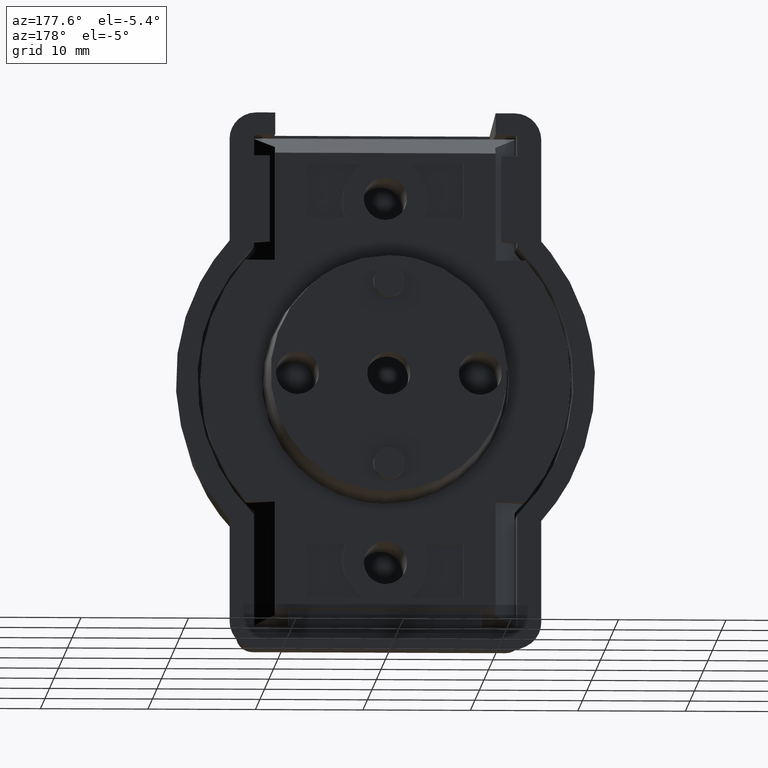
[diagram: clean part render]
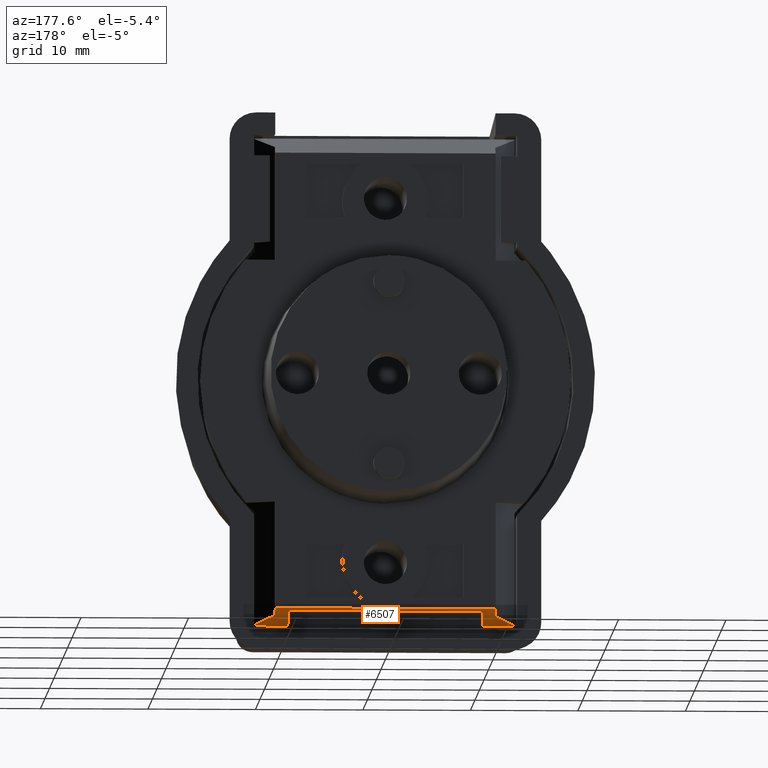
[diagram: same view with one face highlighted and labeled with its STEP entity id]
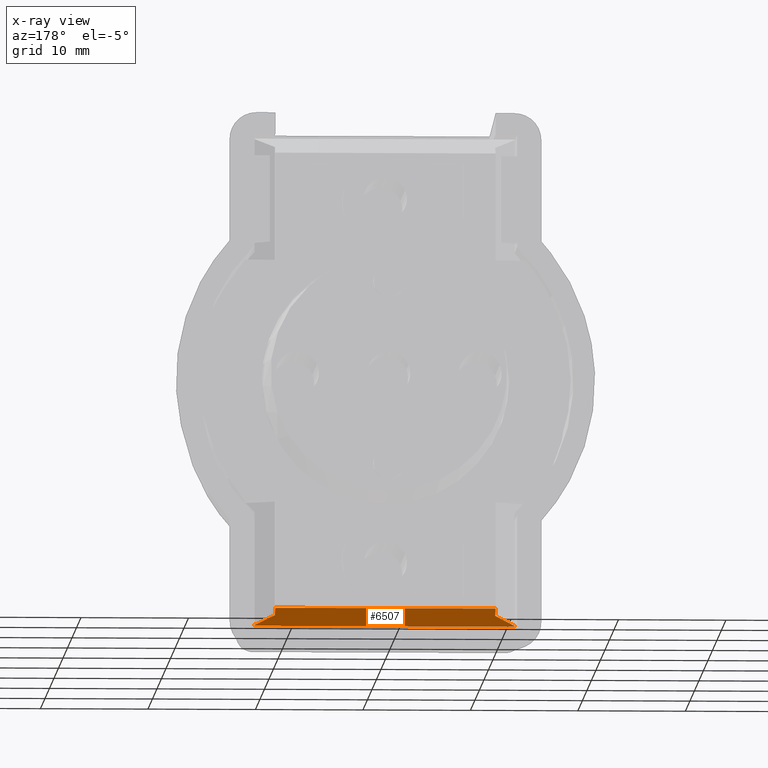
[diagram: x-ray of the same camera — body ghosted, the highlighted face saturated]
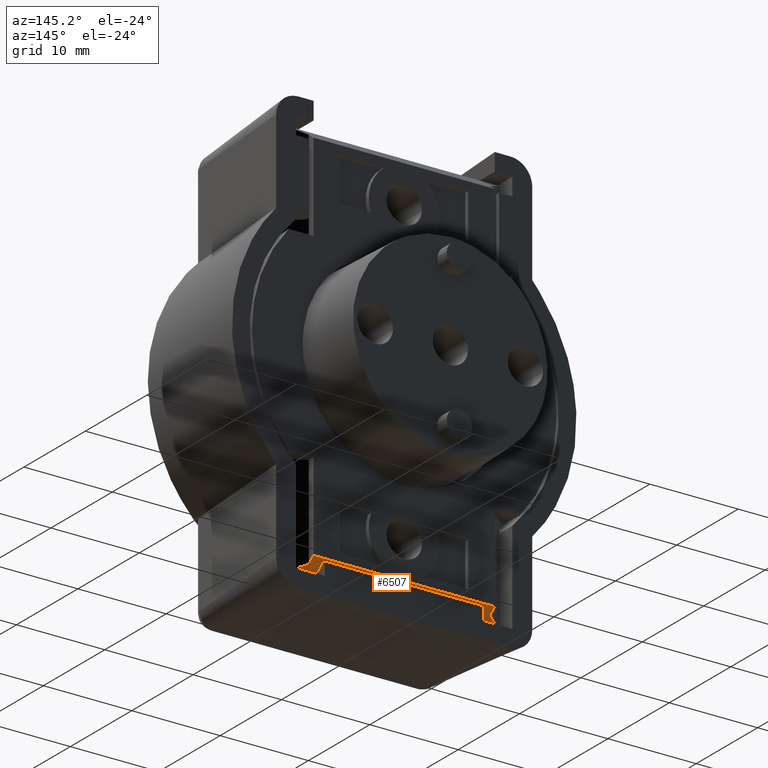
[diagram: same view with one face highlighted and labeled with its STEP entity id]
A machine part, auxiliary view. The second image highlights one B-rep face of the part: STEP entity #6507.
The next image is the same camera in x-ray: the body ghosted, the highlighted face saturated — about 0% of this face is hidden behind the body in this view.
A second angle (auxiliary view) of the same face is appended — the face is thin or edge-on in the first view.
In plain terms, the highlighted face is a freeform B-spline surface patch.
Its self-contained STEP definition (entity closure, byte-faithful):
#6148=CARTESIAN_POINT('',(1.905363284608635,-12.092272141014440,22.679022463456452));
#6149=VERTEX_POINT('',#6148);
#6155=CARTESIAN_POINT('',(0.799999999999984,-10.250000000000000,21.850000000000001));
#6156=VERTEX_POINT('',#6155);
#6157=CARTESIAN_POINT('',(1.905363284608635,-12.092272141014440,22.679022463456452));
#6158=CARTESIAN_POINT('',(0.799999999999984,-10.250000000000000,21.850000000000001));
#6159=QUASI_UNIFORM_CURVE('',1,(#6157,#6158),.UNSPECIFIED.,.F.,.U.);
#6160=EDGE_CURVE('',#6149,#6156,#6159,.T.);
#6176=CARTESIAN_POINT('',(-1.092876E-013,-10.250000000000000,21.249999999999702));
#6177=VERTEX_POINT('',#6176);
#6178=CARTESIAN_POINT('',(0.799999999999984,-10.250000000000000,21.850000000000001));
#6179=CARTESIAN_POINT('',(-1.092876E-013,-10.250000000000000,21.249999999999702));
#6180=QUASI_UNIFORM_CURVE('',1,(#6178,#6179),.UNSPECIFIED.,.F.,.U.);
#6181=EDGE_CURVE('',#6156,#6177,#6180,.T.);
#6236=CARTESIAN_POINT('',(0.0,10.250000000000000,21.250000000000000));
#6237=VERTEX_POINT('',#6236);
#6238=CARTESIAN_POINT('',(0.799999999999956,10.250000000000000,21.850000000000001));
#6239=VERTEX_POINT('',#6238);
#6240=CARTESIAN_POINT('',(0.0,10.250000000000000,21.250000000000000));
#6241=CARTESIAN_POINT('',(0.799999999999956,10.250000000000000,21.850000000000001));
#6242=QUASI_UNIFORM_CURVE('',1,(#6240,#6241),.UNSPECIFIED.,.F.,.U.);
#6243=EDGE_CURVE('',#6237,#6239,#6242,.T.);
#6281=CARTESIAN_POINT('',(1.905363284608745,12.092272141014719,22.679022463456501));
#6282=VERTEX_POINT('',#6281);
#6283=CARTESIAN_POINT('',(0.799999999999956,10.250000000000000,21.850000000000001));
#6284=CARTESIAN_POINT('',(1.905363284608745,12.092272141014719,22.679022463456501));
#6285=QUASI_UNIFORM_CURVE('',1,(#6283,#6284),.UNSPECIFIED.,.F.,.U.);
#6286=EDGE_CURVE('',#6239,#6282,#6285,.T.);
#6421=CARTESIAN_POINT('',(2.0,-12.084438020025299,22.750000000000000));
#6422=VERTEX_POINT('',#6421);
#6465=CARTESIAN_POINT('',(2.0,12.084438020025480,22.750000000000000));
#6466=VERTEX_POINT('',#6465);
#6472=CARTESIAN_POINT('',(2.0,12.084438020025480,22.750000000000000));
#6473=CARTESIAN_POINT('',(2.0,-12.084438020025299,22.750000000000000));
#6474=QUASI_UNIFORM_CURVE('',1,(#6472,#6473),.UNSPECIFIED.,.F.,.U.);
#6475=EDGE_CURVE('',#6466,#6422,#6474,.T.);
#6480=CARTESIAN_POINT('',(-0.099899996123837,-13.300289767596080,21.175075002907128));
#6481=CARTESIAN_POINT('',(2.099900049767803,-13.300289767596080,22.824925037325858));
#6482=CARTESIAN_POINT('',(-0.099899996123837,13.300288902689660,21.175075002907121));
#6483=CARTESIAN_POINT('',(2.099900049767803,13.300288902689660,22.824925037325858));
#6484=B_SPLINE_SURFACE_WITH_KNOTS('',1,1,((#6480,#6482),(#6481,#6483)),.UNSPECIFIED.,.F.,.F.,.U.,(2,2),(2,2),(0.0,2.749750057364552),(0.0,26.600578670285739),.UNSPECIFIED.);
#6485=ORIENTED_EDGE('',*,*,#6181,.F.);
#6486=ORIENTED_EDGE('',*,*,#6160,.F.);
#6487=CARTESIAN_POINT('',(1.905363284608635,-12.092272141014440,22.679022463456452));
#6488=CARTESIAN_POINT('',(2.0,-12.084438020025299,22.750000000000000));
#6489=QUASI_UNIFORM_CURVE('',1,(#6487,#6488),.UNSPECIFIED.,.F.,.U.);
#6490=EDGE_CURVE('',#6149,#6422,#6489,.T.);
#6491=ORIENTED_EDGE('',*,*,#6490,.T.);
#6492=ORIENTED_EDGE('',*,*,#6475,.F.);
#6493=CARTESIAN_POINT('',(1.905363284608745,12.092272141014719,22.679022463456501));
#6494=CARTESIAN_POINT('',(2.0,12.084438020025480,22.750000000000000));
#6495=QUASI_UNIFORM_CURVE('',1,(#6493,#6494),.UNSPECIFIED.,.F.,.U.);
#6496=EDGE_CURVE('',#6282,#6466,#6495,.T.);
#6497=ORIENTED_EDGE('',*,*,#6496,.F.);
#6498=ORIENTED_EDGE('',*,*,#6286,.F.);
#6499=ORIENTED_EDGE('',*,*,#6243,.F.);
#6500=CARTESIAN_POINT('',(0.0,10.250000000000000,21.250000000000000));
#6501=CARTESIAN_POINT('',(-1.092876E-013,-10.250000000000000,21.249999999999702));
#6502=QUASI_UNIFORM_CURVE('',1,(#6500,#6501),.UNSPECIFIED.,.F.,.U.);
#6503=EDGE_CURVE('',#6237,#6177,#6502,.T.);
#6504=ORIENTED_EDGE('',*,*,#6503,.T.);
#6505=EDGE_LOOP('',(#6485,#6486,#6491,#6492,#6497,#6498,#6499,#6504));
#6506=FACE_OUTER_BOUND('',#6505,.T.);
#6507=ADVANCED_FACE('',(#6506),#6484,.T.);